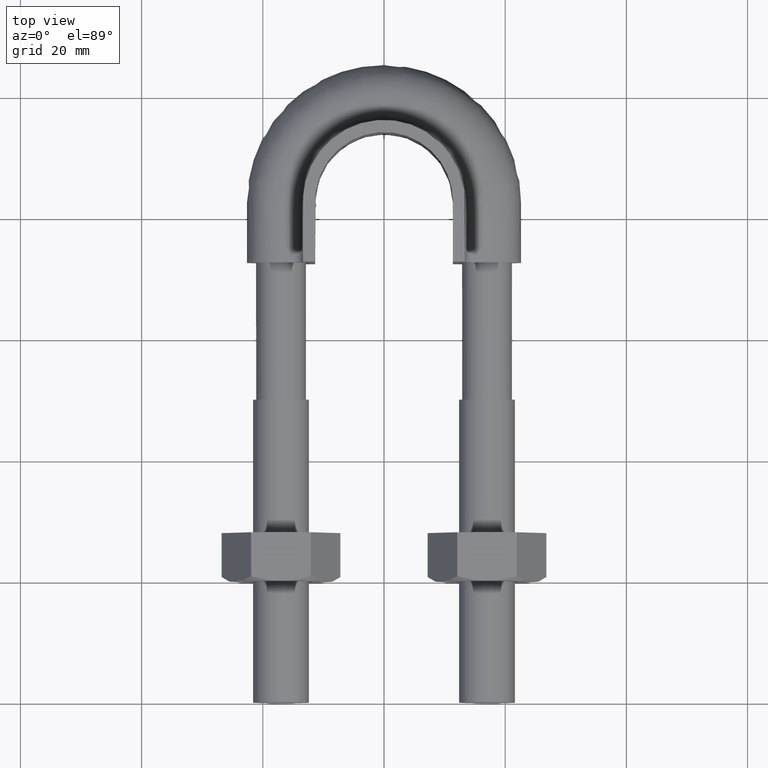
[diagram: clean part render]
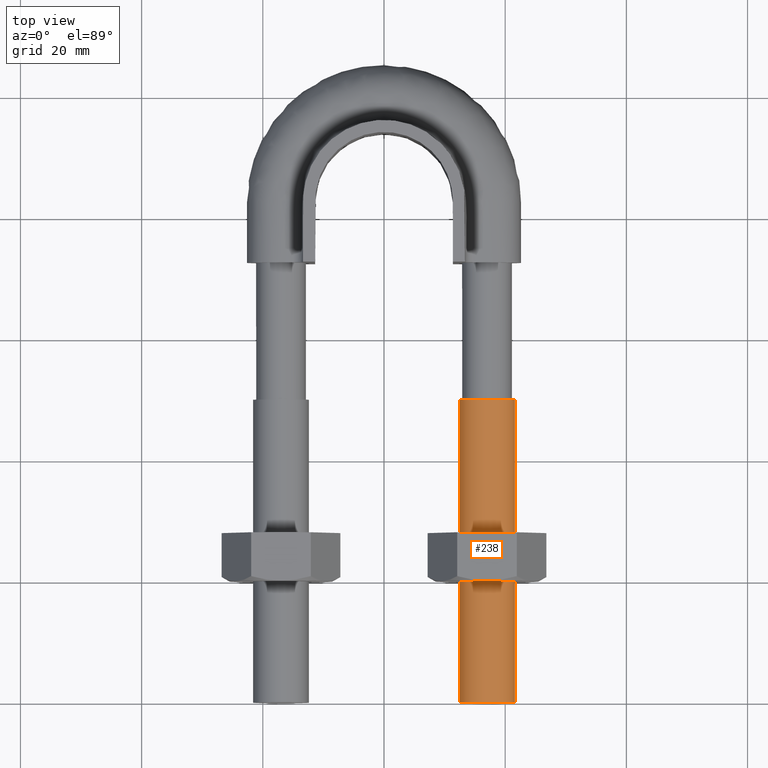
[diagram: same view with one face highlighted and labeled with its STEP entity id]
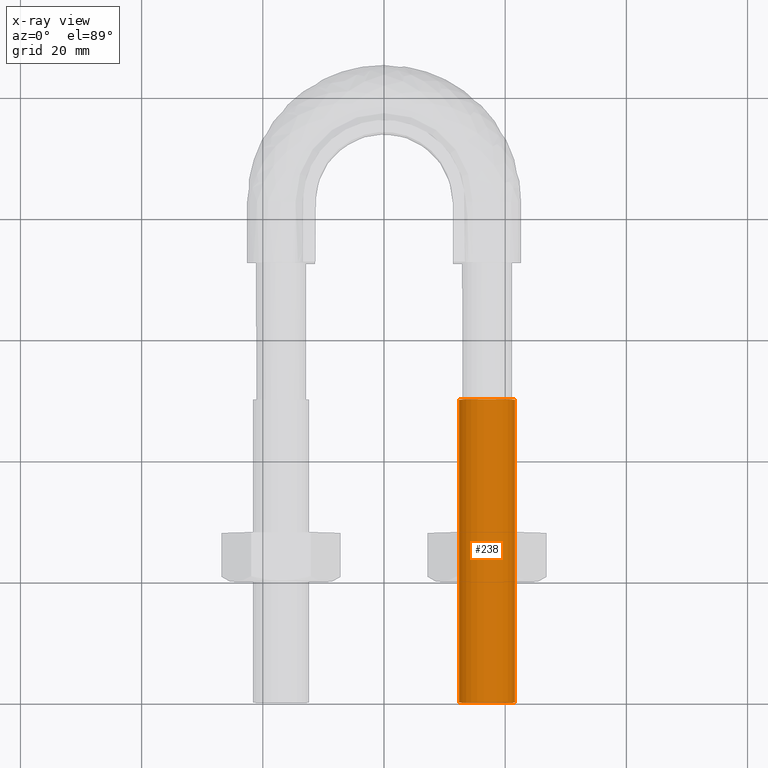
[diagram: x-ray of the same camera — body ghosted, the highlighted face saturated]
A machine part, top view. The second image highlights one B-rep face of the part: STEP entity #238.
The next image is the same camera in x-ray: the body ghosted, the highlighted face saturated — about 0% of this face is hidden behind the body in this view.
In plain terms, the highlighted cylindrical surface (bore or boss wall) has radius 4.6 mm, axis along (-0, -1, 0).
Its self-contained STEP definition (entity closure, byte-faithful):
#238 = ADVANCED_FACE( '', ( #340, #341 ), #342, .T. );
#340 = FACE_OUTER_BOUND( '', #1419, .T. );
#341 = FACE_OUTER_BOUND( '', #1420, .T. );
#342 = CYLINDRICAL_SURFACE( '', #1421, 4.60000000000000 );
#1419 = EDGE_LOOP( '', ( #1687 ) );
#1420 = EDGE_LOOP( '', ( #1688 ) );
#1421 = AXIS2_PLACEMENT_3D( '', #1689, #1690, #1691 );
#1687 = ORIENTED_EDGE( '', *, *, #2132, .F. );
#1688 = ORIENTED_EDGE( '', *, *, #2133, .T. );
#1689 = CARTESIAN_POINT( '', ( 17.0000000000000, 50.0000000000000, -1.54484091534693E-014 ) );
#1690 = DIRECTION( '', ( -2.44921270764475E-016, -1.00000000000000, 3.06151588455594E-016 ) );
#1691 = DIRECTION( '', ( 1.00000000000000, -2.44921270764475E-016, -1.09476442525376E-047 ) );
#2132 = EDGE_CURVE( '', #2311, #2311, #2312, .T. );
#2133 = EDGE_CURVE( '', #2313, #2313, #2314, .T. );
#2311 = VERTEX_POINT( '', #2759 );
#2312 = CIRCLE( '', #2760, 4.60000000000000 );
#2313 = VERTEX_POINT( '', #2761 );
#2314 = CIRCLE( '', #2762, 4.60000000000000 );
#2759 = CARTESIAN_POINT( '', ( 21.6000000000000, -5.29029944851267E-015, -1.40829730689573E-016 ) );
#2760 = AXIS2_PLACEMENT_3D( '', #3150, #3151, #3152 );
#2761 = CARTESIAN_POINT( '', ( 21.6000000000000, 50.0000000000000, -1.54484091534693E-014 ) );
#2762 = AXIS2_PLACEMENT_3D( '', #3153, #3154, #3155 );
#3150 = CARTESIAN_POINT( '', ( 17.0000000000000, -4.16366160299608E-015, -1.40829730689573E-016 ) );
#3151 = DIRECTION( '', ( -2.44921270764475E-016, -1.00000000000000, 3.06151588455594E-016 ) );
#3152 = DIRECTION( '', ( 1.00000000000000, -2.44921270764475E-016, -1.09476442525376E-047 ) );
#3153 = CARTESIAN_POINT( '', ( 17.0000000000000, 50.0000000000000, -1.54484091534693E-014 ) );
#3154 = DIRECTION( '', ( -2.44921270764475E-016, -1.00000000000000, 3.06151588455594E-016 ) );
#3155 = DIRECTION( '', ( 1.00000000000000, -2.44921270764475E-016, -1.09476442525376E-047 ) );